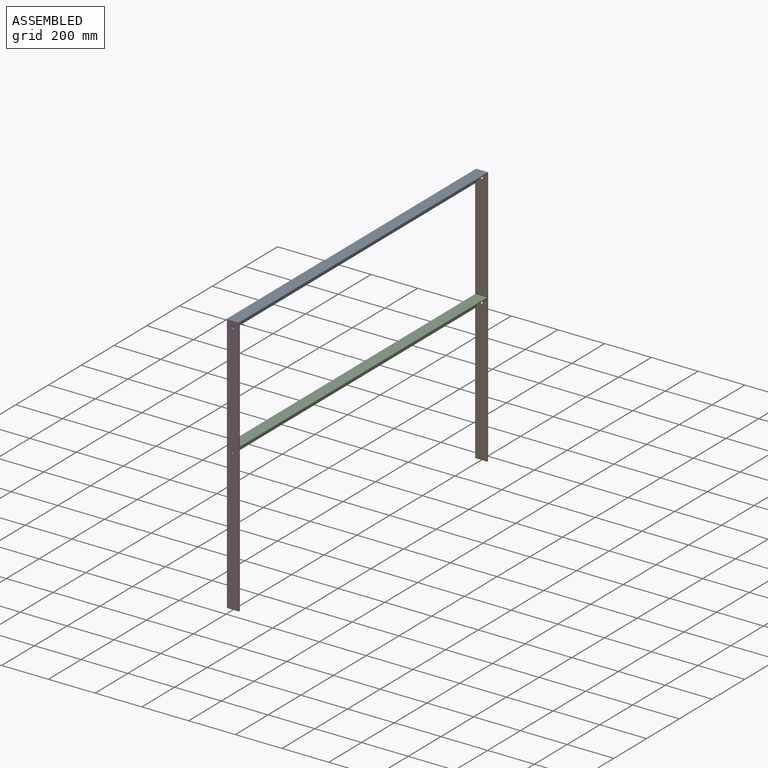
[diagram: assembled view]
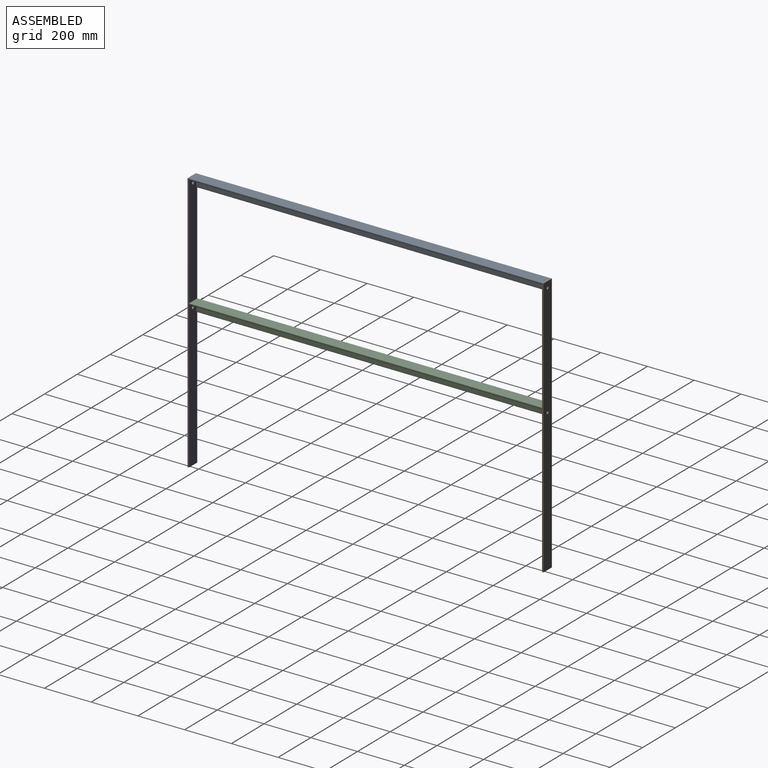
[diagram: assembled view, second angle]
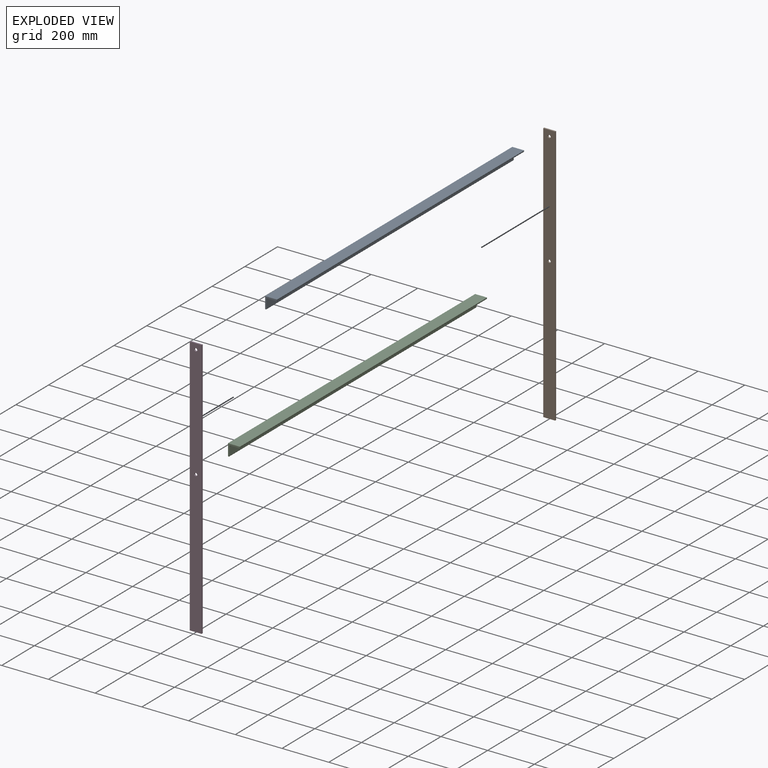
[diagram: exploded view]
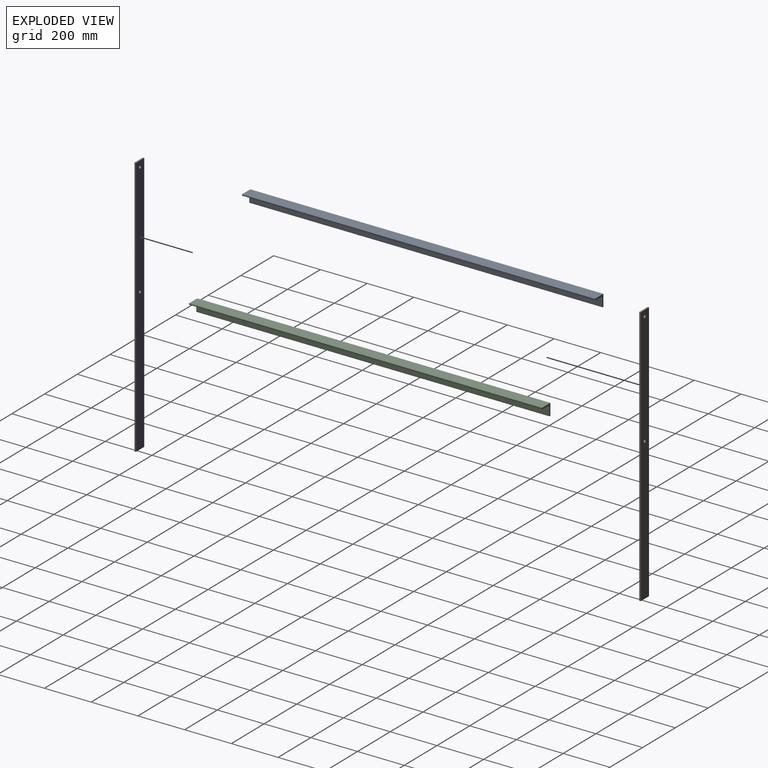
[diagram: exploded view, second angle]
ASSEMBLY  parts=4 mates=2
PART A: 11 faces, bbox 50.8x1511.3x50.8 mm
  f0: plane 50.8x50.8mm, normal (0,1,0), area 609.2mm2, adj f2,f3,f4,f5,f6,f7,f8,f9
  f1: plane 50.8x50.8mm, normal (0,-1,0), area 609.2mm2, adj f2,f3,f4,f5,f6,f7,f8,f9
  f2: plane 1511.3x34.93mm, normal (0,0,-1), area 52782.2mm2, adj f0,f1,f3,f10
  f3: cylinder r=6.35mm len=1511.3mm, axis (0,-1,0), area 15074.7mm2, adj f0,f1,f2,f4
  f4: plane 1511.3x34.93mm, normal (1,0,0), area 52782.2mm2, adj f0,f1,f3,f5
  f5: cylinder r=3.17mm len=1511.3mm, axis (0,-1,0), area 7537.4mm2, adj f0,f1,f4,f6
  f6: plane 1511.3x3.18mm, normal (0,0,-1), area 4798.4mm2, adj f0,f1,f5,f7
  f7: plane 1511.3x50.8mm, normal (-1,0,0), area 76774mm2, adj f0,f1,f6,f8
  f8: plane 1511.3x50.8mm, normal (0,0,1), area 76774mm2, adj f0,f1,f7,f9
  f9: plane 1511.3x3.18mm, normal (1,0,0), area 4798.4mm2, adj f0,f1,f8,f10
  f10: cylinder r=3.17mm len=1511.3mm, axis (0,-1,0), area 7537.4mm2, adj f0,f1,f2,f9
PART B: 8 faces, bbox 50.8x6.4x1117.6 mm
  f0: plane 1117.6x50.8mm, normal (0,1,0), area 56520.7mm2, adj f1,f3,f4,f5,f6,f7
  f1: plane 50.8x6.35mm, normal (0,0,-1), area 322.6mm2, adj f0,f2,f4,f5
  f2: plane 1117.6x50.8mm, normal (0,-1,0), area 56520.7mm2, adj f1,f3,f4,f5,f6,f7
  f3: plane 50.8x6.35mm, normal (0,0,1), area 322.6mm2, adj f0,f2,f4,f5
  f4: plane 1117.6x6.35mm, normal (-1,0,0), area 7096.8mm2, adj f0,f1,f2,f3
  f5: plane 1117.6x6.35mm, normal (1,0,0), area 7096.8mm2, adj f0,f1,f2,f3
  f6: cylinder r=6.35mm len=12.7mm, axis (0,-1,0), area 253.4mm2, adj f0,f2
  f7: cylinder r=6.35mm len=12.7mm, axis (0,-1,0), area 253.4mm2, adj f0,f2
PART C: same geometry as A
PART D: same geometry as B
PLACE A t=(-124.7,-44.58,-38.79)mm
PLACE B t=(-73.9,1473.07,-38.79)mm
PLACE C t=(-124.7,-44.58,-521.39)mm
PLACE D t=(-73.9,-44.58,-38.79)mm
MATE fastened A.f1 <-> D.f0  axis (0,-1,0) through (-1191.5,-800.23,5041.21)mm
MATE fastened B.f2 <-> A.f0  axis (0,-1,0) through (-1191.5,711.07,5041.21)mm
